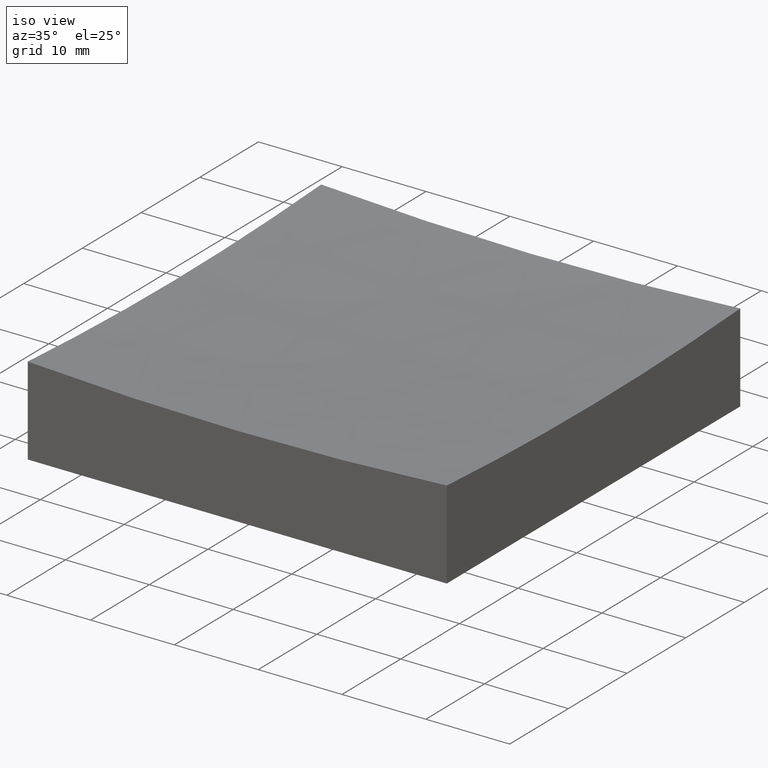
[diagram: clean part render]
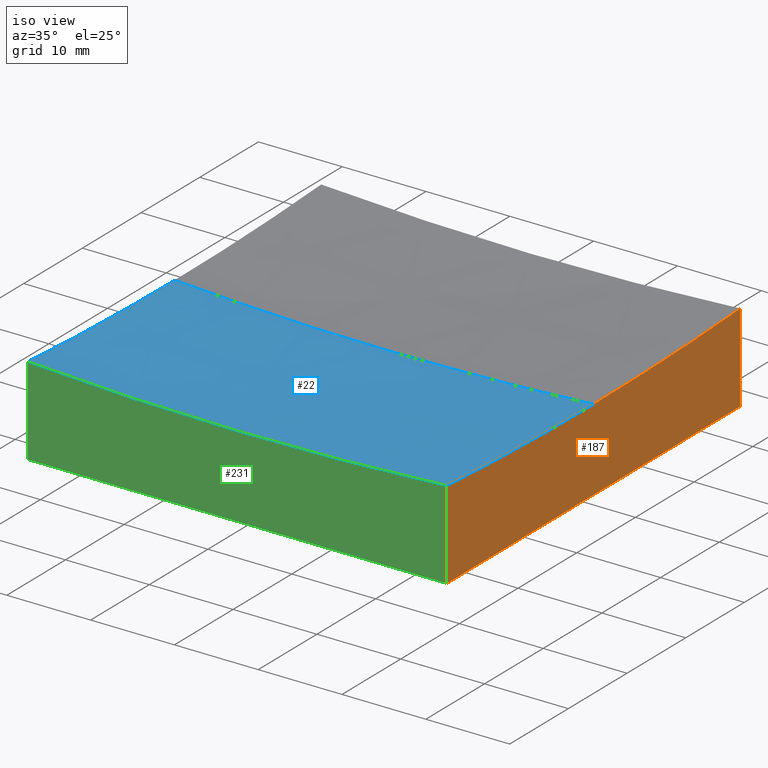
[diagram: same view with three faces highlighted in distinct colors, each labeled with its STEP entity id]
A machine part, iso view with three faces highlighted in distinct colors.
Their STEP definitions:

[orange] entity #187 — the highlighted planar face has unit normal (1, 0, -0).
#13 = VECTOR ( 'NONE', #109, 1000.000000000000000 ) ;
#23 = CARTESIAN_POINT ( 'NONE',  ( 24.99999999999999645, 24.99999999999999645, 10.56556373726935760 ) ) ;
#27 = EDGE_CURVE ( 'NONE', #66, #63, #72, .T. ) ;
#44 = CARTESIAN_POINT ( 'NONE',  ( 24.99999999999999645, 24.99999999999999645, 0.0000000000000000000 ) ) ;
#45 = CARTESIAN_POINT ( 'NONE',  ( 24.99999999999999645, 1.734723475976803545E-15, 409.0000000000000568 ) ) ;
#54 = FACE_OUTER_BOUND ( 'NONE', #177, .T. ) ;
#63 = VERTEX_POINT ( 'NONE', #149 ) ;
#64 = AXIS2_PLACEMENT_3D ( 'NONE', #45, #125, #185 ) ;
#66 = VERTEX_POINT ( 'NONE', #23 ) ;
#72 = LINE ( 'NONE', #190, #211 ) ;
#77 = CARTESIAN_POINT ( 'NONE',  ( 24.99999999999999645, 24.99999999999999645, 50.00000000000000000 ) ) ;
#78 = DIRECTION ( 'NONE',  ( -6.938893903907228378E-17, 1.000000000000000000, 0.0000000000000000000 ) ) ;
#81 = EDGE_CURVE ( 'NONE', #63, #139, #144, .T. ) ;
#86 = CARTESIAN_POINT ( 'NONE',  ( 25.00000000000000000, -25.00000000000000711, 0.0000000000000000000 ) ) ;
#91 = DIRECTION ( 'NONE',  ( -0.0000000000000000000, -0.0000000000000000000, -1.000000000000000000 ) ) ;
#96 = CIRCLE ( 'NONE', #64, 399.2179855667827724 ) ;
#102 = ORIENTED_EDGE ( 'NONE', *, *, #81, .F. ) ;
#109 = DIRECTION ( 'NONE',  ( 6.938893903907228378E-17, -1.000000000000000000, 0.0000000000000000000 ) ) ;
#112 = CARTESIAN_POINT ( 'NONE',  ( 24.99999999999999645, 1.734723475976803545E-15, 409.0000000000000568 ) ) ;
#117 = VERTEX_POINT ( 'NONE', #222 ) ;
#121 = VECTOR ( 'NONE', #91, 1000.000000000000000 ) ;
#125 = DIRECTION ( 'NONE',  ( 1.000000000000000000, 6.938893903907228378E-17, -0.0000000000000000000 ) ) ;
#139 = VERTEX_POINT ( 'NONE', #86 ) ;
#144 = LINE ( 'NONE', #44, #13 ) ;
#149 = CARTESIAN_POINT ( 'NONE',  ( 24.99999999999999645, 24.99999999999999645, 0.0000000000000000000 ) ) ;
#153 = CARTESIAN_POINT ( 'NONE',  ( 24.99999999999999645, -9.629649721936179265E-32, 9.782014433217273819 ) ) ;
#154 = DIRECTION ( 'NONE',  ( -6.952486265422991780E-17, 1.000000000000000000, 0.0000000000000000000 ) ) ;
#159 = EDGE_CURVE ( 'NONE', #117, #230, #96, .T. ) ;
#160 = ORIENTED_EDGE ( 'NONE', *, *, #216, .F. ) ;
#163 = DIRECTION ( 'NONE',  ( -0.0000000000000000000, -0.0000000000000000000, -1.000000000000000000 ) ) ;
#170 = DIRECTION ( 'NONE',  ( 1.000000000000000000, 6.938893903907228378E-17, -0.0000000000000000000 ) ) ;
#177 = EDGE_LOOP ( 'NONE', ( #238, #215, #102, #233, #160 ) ) ;
#182 = EDGE_CURVE ( 'NONE', #117, #139, #189, .T. ) ;
#184 = CIRCLE ( 'NONE', #218, 399.2179855667827724 ) ;
#185 = DIRECTION ( 'NONE',  ( -6.952486265422991780E-17, 1.000000000000000000, 0.0000000000000000000 ) ) ;
#187 = ADVANCED_FACE ( 'NONE', ( #54 ), #191, .T. ) ;
#188 = AXIS2_PLACEMENT_3D ( 'NONE', #77, #170, #78 ) ;
#189 = LINE ( 'NONE', #246, #121 ) ;
#190 = CARTESIAN_POINT ( 'NONE',  ( 24.99999999999999645, 24.99999999999999645, 50.00000000000000000 ) ) ;
#191 = PLANE ( 'NONE',  #188 ) ;
#211 = VECTOR ( 'NONE', #163, 1000.000000000000000 ) ;
#215 = ORIENTED_EDGE ( 'NONE', *, *, #182, .T. ) ;
#216 = EDGE_CURVE ( 'NONE', #230, #66, #184, .T. ) ;
#218 = AXIS2_PLACEMENT_3D ( 'NONE', #112, #247, #154 ) ;
#222 = CARTESIAN_POINT ( 'NONE',  ( 25.00000000000000000, -25.00000000000000711, 10.56556373726935760 ) ) ;
#230 = VERTEX_POINT ( 'NONE', #153 ) ;
#233 = ORIENTED_EDGE ( 'NONE', *, *, #27, .F. ) ;
#238 = ORIENTED_EDGE ( 'NONE', *, *, #159, .F. ) ;
#246 = CARTESIAN_POINT ( 'NONE',  ( 25.00000000000000000, -25.00000000000000711, 50.00000000000000000 ) ) ;
#247 = DIRECTION ( 'NONE',  ( 1.000000000000000000, 6.938893903907228378E-17, -0.0000000000000000000 ) ) ;

[blue] entity #22 — the highlighted spherical surface has radius 400 mm.
#5 = CARTESIAN_POINT ( 'NONE',  ( -25.00000000000000355, -1.734723475976811039E-15, 409.0000000000000568 ) ) ;
#22 = ADVANCED_FACE ( 'NONE', ( #142 ), #107, .F. ) ;
#26 = CARTESIAN_POINT ( 'NONE',  ( 9.319482020284216011E-14, 0.0000000000000000000, 9.000000000000063949 ) ) ;
#28 = CARTESIAN_POINT ( 'NONE',  ( 5.008805408512674501E-14, 0.0000000000000000000, 409.0000000000000568 ) ) ;
#29 = AXIS2_PLACEMENT_3D ( 'NONE', #28, #166, #111 ) ;
#31 = EDGE_CURVE ( 'NONE', #181, #60, #99, .T. ) ;
#45 = CARTESIAN_POINT ( 'NONE',  ( 24.99999999999999645, 1.734723475976803545E-15, 409.0000000000000568 ) ) ;
#46 = DIRECTION ( 'NONE',  ( 0.0000000000000000000, 0.0000000000000000000, -1.000000000000000000 ) ) ;
#60 = VERTEX_POINT ( 'NONE', #202 ) ;
#64 = AXIS2_PLACEMENT_3D ( 'NONE', #45, #125, #185 ) ;
#70 = DIRECTION ( 'NONE',  ( 0.0000000000000000000, -1.000000000000000000, 0.0000000000000000000 ) ) ;
#73 = DIRECTION ( 'NONE',  ( 0.0000000000000000000, 1.000000000000000000, 0.0000000000000000000 ) ) ;
#87 = CARTESIAN_POINT ( 'NONE',  ( 5.008805408512674501E-14, 0.0000000000000000000, 409.0000000000000568 ) ) ;
#88 = CARTESIAN_POINT ( 'NONE',  ( 5.008805408512674501E-14, -25.00000000000000711, 409.0000000000000568 ) ) ;
#96 = CIRCLE ( 'NONE', #64, 399.2179855667827724 ) ;
#99 = CIRCLE ( 'NONE', #126, 399.9999999999999432 ) ;
#104 = VERTEX_POINT ( 'NONE', #148 ) ;
#106 = ORIENTED_EDGE ( 'NONE', *, *, #175, .F. ) ;
#107 = SPHERICAL_SURFACE ( 'NONE', #29, 399.9999999999999432 ) ;
#110 = DIRECTION ( 'NONE',  ( -1.000000000000000000, 1.224646799147353207E-16, 0.0000000000000000000 ) ) ;
#111 = DIRECTION ( 'NONE',  ( 1.000000000000000000, 0.0000000000000000000, 0.0000000000000000000 ) ) ;
#117 = VERTEX_POINT ( 'NONE', #222 ) ;
#125 = DIRECTION ( 'NONE',  ( 1.000000000000000000, 6.938893903907228378E-17, -0.0000000000000000000 ) ) ;
#126 = AXIS2_PLACEMENT_3D ( 'NONE', #146, #225, #110 ) ;
#127 = EDGE_CURVE ( 'NONE', #104, #60, #250, .T. ) ;
#129 = AXIS2_PLACEMENT_3D ( 'NONE', #87, #70, #46 ) ;
#130 = DIRECTION ( 'NONE',  ( 0.0000000000000000000, 0.0000000000000000000, 1.000000000000000000 ) ) ;
#136 = ORIENTED_EDGE ( 'NONE', *, *, #127, .F. ) ;
#140 = AXIS2_PLACEMENT_3D ( 'NONE', #5, #186, #223 ) ;
#142 = FACE_OUTER_BOUND ( 'NONE', #217, .T. ) ;
#146 = CARTESIAN_POINT ( 'NONE',  ( 5.008805408512674501E-14, 0.0000000000000000000, 409.0000000000000568 ) ) ;
#148 = CARTESIAN_POINT ( 'NONE',  ( -25.00000000000000000, -25.00000000000000711, 10.56556373726935760 ) ) ;
#153 = CARTESIAN_POINT ( 'NONE',  ( 24.99999999999999645, -9.629649721936179265E-32, 9.782014433217273819 ) ) ;
#155 = ORIENTED_EDGE ( 'NONE', *, *, #171, .F. ) ;
#156 = ORIENTED_EDGE ( 'NONE', *, *, #159, .T. ) ;
#159 = EDGE_CURVE ( 'NONE', #117, #230, #96, .T. ) ;
#166 = DIRECTION ( 'NONE',  ( -0.0000000000000000000, 1.000000000000000000, 0.0000000000000000000 ) ) ;
#171 = EDGE_CURVE ( 'NONE', #181, #230, #235, .T. ) ;
#174 = CIRCLE ( 'NONE', #206, 399.2179855667827724 ) ;
#175 = EDGE_CURVE ( 'NONE', #117, #104, #174, .T. ) ;
#181 = VERTEX_POINT ( 'NONE', #26 ) ;
#185 = DIRECTION ( 'NONE',  ( -6.952486265422991780E-17, 1.000000000000000000, 0.0000000000000000000 ) ) ;
#186 = DIRECTION ( 'NONE',  ( 1.000000000000000000, 6.938893903907228378E-17, -0.0000000000000000000 ) ) ;
#202 = CARTESIAN_POINT ( 'NONE',  ( -25.00000000000000355, 3.061616997868391720E-15, 9.782014433217300464 ) ) ;
#206 = AXIS2_PLACEMENT_3D ( 'NONE', #88, #73, #130 ) ;
#217 = EDGE_LOOP ( 'NONE', ( #155, #229, #136, #106, #156 ) ) ;
#222 = CARTESIAN_POINT ( 'NONE',  ( 25.00000000000000000, -25.00000000000000711, 10.56556373726935760 ) ) ;
#223 = DIRECTION ( 'NONE',  ( -6.952486265422993012E-17, 1.000000000000000000, 0.0000000000000000000 ) ) ;
#225 = DIRECTION ( 'NONE',  ( 1.224646799147353207E-16, 1.000000000000000000, 5.698841873604149506E-33 ) ) ;
#229 = ORIENTED_EDGE ( 'NONE', *, *, #31, .T. ) ;
#230 = VERTEX_POINT ( 'NONE', #153 ) ;
#235 = CIRCLE ( 'NONE', #129, 399.9999999999999432 ) ;
#250 = CIRCLE ( 'NONE', #140, 399.2179855667827155 ) ;

[green] entity #231 — the highlighted planar face has unit normal (0, 1, 0).
#8 = LINE ( 'NONE', #224, #25 ) ;
#10 = PLANE ( 'NONE',  #208 ) ;
#25 = VECTOR ( 'NONE', #242, 1000.000000000000000 ) ;
#30 = DIRECTION ( 'NONE',  ( -0.0000000000000000000, -0.0000000000000000000, -1.000000000000000000 ) ) ;
#33 = CARTESIAN_POINT ( 'NONE',  ( -25.00000000000000000, -25.00000000000000711, 50.00000000000000000 ) ) ;
#42 = ORIENTED_EDGE ( 'NONE', *, *, #134, .T. ) ;
#55 = LINE ( 'NONE', #33, #98 ) ;
#73 = DIRECTION ( 'NONE',  ( 0.0000000000000000000, 1.000000000000000000, 0.0000000000000000000 ) ) ;
#74 = CARTESIAN_POINT ( 'NONE',  ( -25.00000000000000000, -25.00000000000000711, 50.00000000000000000 ) ) ;
#86 = CARTESIAN_POINT ( 'NONE',  ( 25.00000000000000000, -25.00000000000000711, 0.0000000000000000000 ) ) ;
#88 = CARTESIAN_POINT ( 'NONE',  ( 5.008805408512674501E-14, -25.00000000000000711, 409.0000000000000568 ) ) ;
#91 = DIRECTION ( 'NONE',  ( -0.0000000000000000000, -0.0000000000000000000, -1.000000000000000000 ) ) ;
#98 = VECTOR ( 'NONE', #30, 1000.000000000000000 ) ;
#100 = ORIENTED_EDGE ( 'NONE', *, *, #243, .T. ) ;
#104 = VERTEX_POINT ( 'NONE', #148 ) ;
#117 = VERTEX_POINT ( 'NONE', #222 ) ;
#121 = VECTOR ( 'NONE', #91, 1000.000000000000000 ) ;
#123 = ORIENTED_EDGE ( 'NONE', *, *, #175, .T. ) ;
#130 = DIRECTION ( 'NONE',  ( 0.0000000000000000000, 0.0000000000000000000, 1.000000000000000000 ) ) ;
#134 = EDGE_CURVE ( 'NONE', #141, #139, #8, .T. ) ;
#139 = VERTEX_POINT ( 'NONE', #86 ) ;
#141 = VERTEX_POINT ( 'NONE', #168 ) ;
#148 = CARTESIAN_POINT ( 'NONE',  ( -25.00000000000000000, -25.00000000000000711, 10.56556373726935760 ) ) ;
#168 = CARTESIAN_POINT ( 'NONE',  ( -25.00000000000000000, -25.00000000000000711, 0.0000000000000000000 ) ) ;
#172 = DIRECTION ( 'NONE',  ( 0.0000000000000000000, 1.000000000000000000, 0.0000000000000000000 ) ) ;
#174 = CIRCLE ( 'NONE', #206, 399.2179855667827724 ) ;
#175 = EDGE_CURVE ( 'NONE', #117, #104, #174, .T. ) ;
#182 = EDGE_CURVE ( 'NONE', #117, #139, #189, .T. ) ;
#189 = LINE ( 'NONE', #246, #121 ) ;
#193 = DIRECTION ( 'NONE',  ( 0.0000000000000000000, -0.0000000000000000000, 1.000000000000000000 ) ) ;
#206 = AXIS2_PLACEMENT_3D ( 'NONE', #88, #73, #130 ) ;
#208 = AXIS2_PLACEMENT_3D ( 'NONE', #74, #172, #193 ) ;
#212 = ORIENTED_EDGE ( 'NONE', *, *, #182, .F. ) ;
#222 = CARTESIAN_POINT ( 'NONE',  ( 25.00000000000000000, -25.00000000000000711, 10.56556373726935760 ) ) ;
#224 = CARTESIAN_POINT ( 'NONE',  ( -25.00000000000000000, -25.00000000000000711, 0.0000000000000000000 ) ) ;
#231 = ADVANCED_FACE ( 'NONE', ( #251 ), #10, .F. ) ;
#242 = DIRECTION ( 'NONE',  ( 1.000000000000000000, 0.0000000000000000000, 0.0000000000000000000 ) ) ;
#243 = EDGE_CURVE ( 'NONE', #104, #141, #55, .T. ) ;
#246 = CARTESIAN_POINT ( 'NONE',  ( 25.00000000000000000, -25.00000000000000711, 50.00000000000000000 ) ) ;
#251 = FACE_OUTER_BOUND ( 'NONE', #252, .T. ) ;
#252 = EDGE_LOOP ( 'NONE', ( #212, #123, #100, #42 ) ) ;